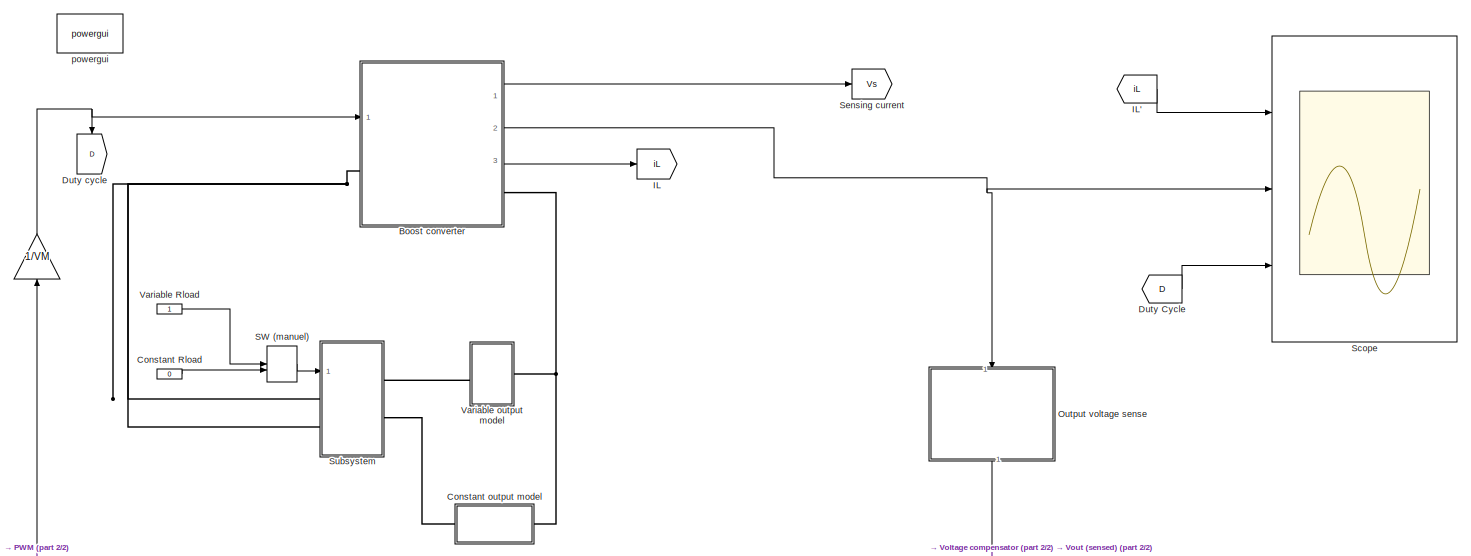
[diagram: root canvas - part 1/2, full width, top band]
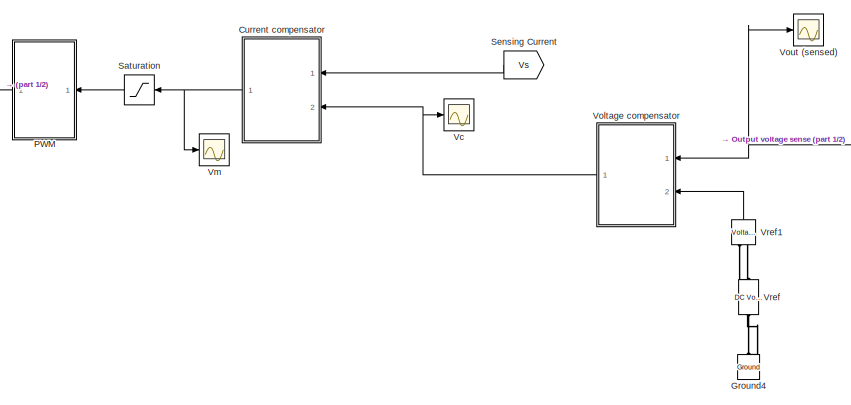
[diagram: root canvas - part 2/2, bottom center region]
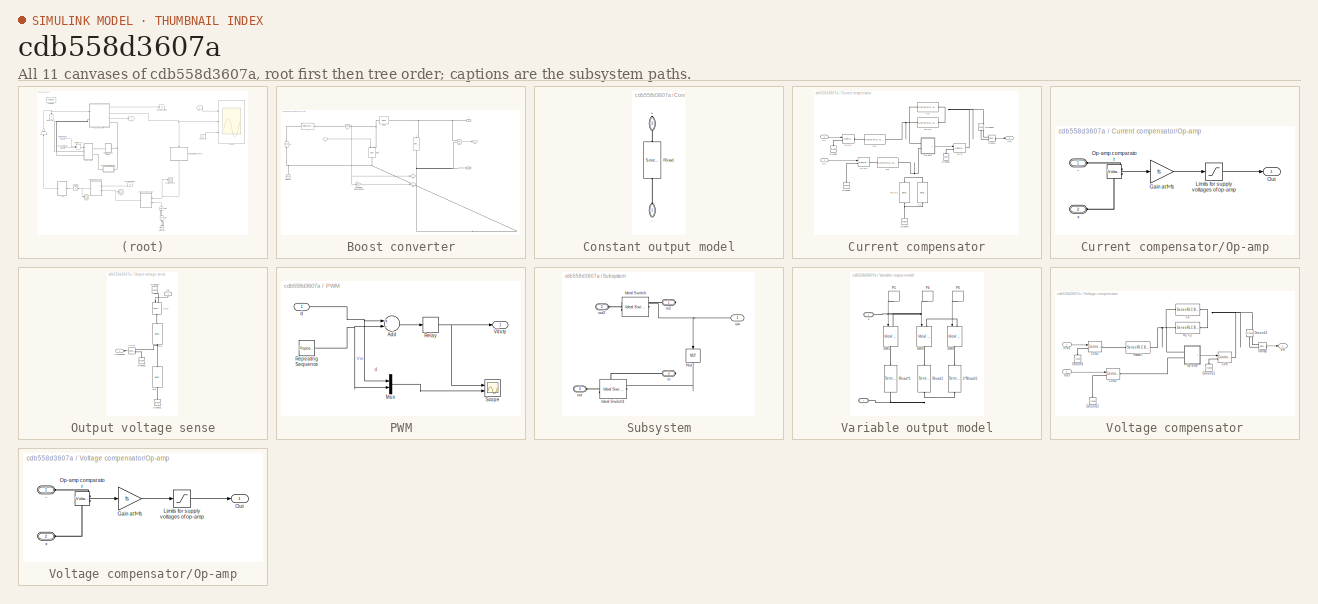
[diagram: thumbnail index - all 11 canvases of the model, root first then tree order]
MODEL slx_cdb558d3607a
KIND model
CONFIG AbsTol = auto
CONFIG FixedStep = auto
CONFIG MaxStep = 0.1e-6
CONFIG MinStep = auto
CONFIG RelTol = 1e-6
CONFIG SampleTimeConstraint = Unconstrained
CONFIG Solver = ode23tb
CONFIG SolverMode = Auto
CONFIG SolverName = ode23tb
CONFIG StartTime = 0.0
CONFIG StopTime = 0.2
BLOCK [Gain]      
  Gain = 1/VM
  OutDataTypeStr = Inherit: Inherit via internal rule
  ParamDataTypeStr = Inherit: Inherit via internal rule
  SaturateOnIntegerOverflow = off
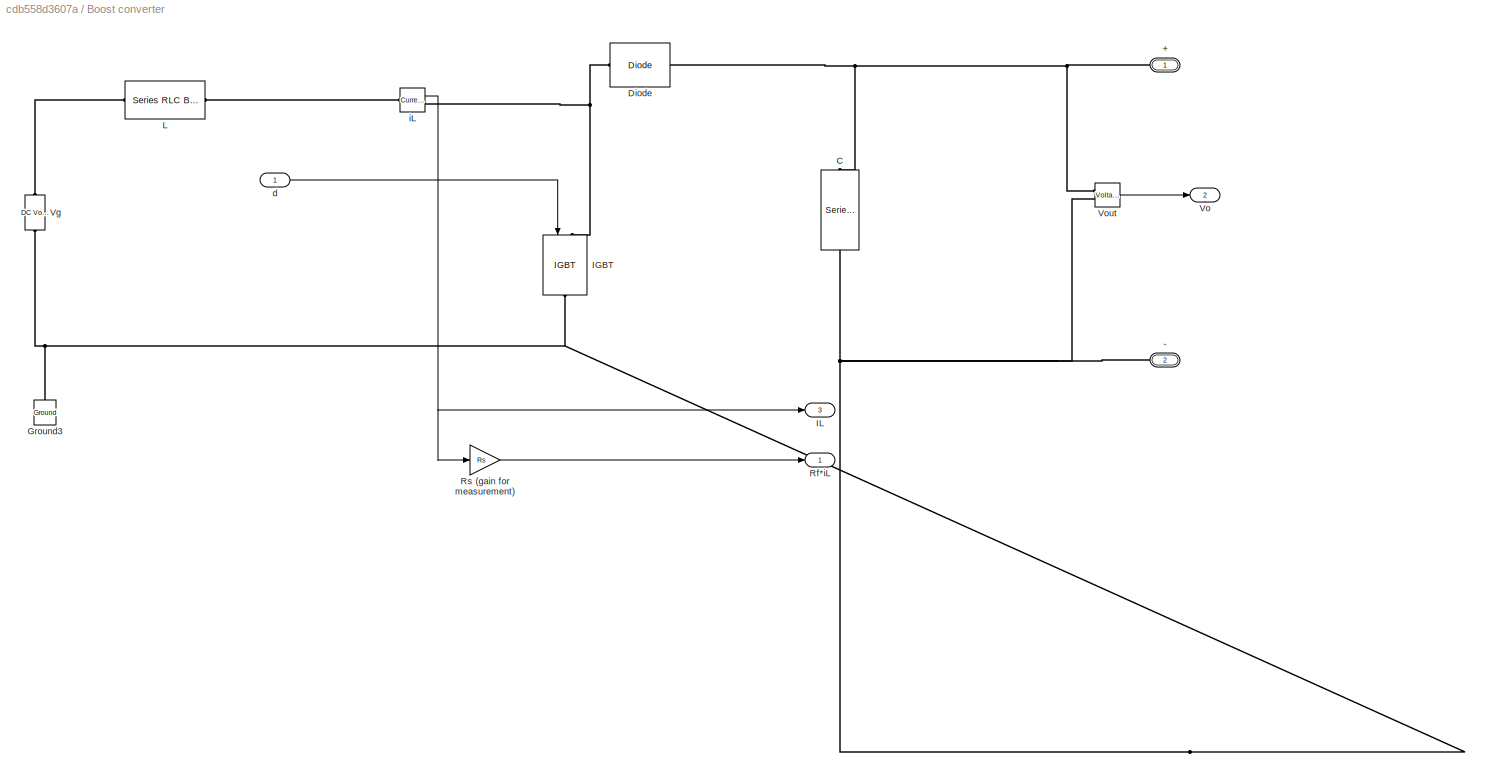
BLOCK [SubSystem] Boost converter
  Ports = [1, 3, 0, 0, 0, 1, 1]
  RequestExecContextInheritance = off
  Variant = off
BLOCK [PMIOPort] Boost converter/+
  Port = 1
  Side = Left
BLOCK [PMIOPort] Boost converter/-
  Port = 2
  Side = Right
BLOCK [Reference] Boost converter/C  REF=powerlib/Elements/Series RLC Branch
  Ports = [0, 0, 0, 0, 0, 1, 1]
  SourceBlock = powerlib/Elements/Series RLC Branch
  SourceType = Series RLC Branch
BLOCK [Reference] Boost converter/Diode  REF=powerlib/Power
Electronics/Diode
  Ports = [0, 0, 0, 0, 0, 1, 1]
  SourceBlock = powerlib/Power\nElectronics/Diode
  SourceType = Diode
BLOCK [Reference] Boost converter/Ground3  REF=powerlib/Elements/Ground
  Ports = [0, 0, 0, 0, 0, 1]
  SourceBlock = powerlib/Elements/Ground
  SourceType = Ground
BLOCK [Reference] Boost converter/IGBT  REF=powerlib/Power
Electronics/IGBT
  Ports = [1, 0, 0, 0, 0, 1, 1]
  SourceBlock = powerlib/Power\nElectronics/IGBT
  SourceType = IGBT
BLOCK [Outport] Boost converter/IL
  IconDisplay = Port number
  Port = 3
BLOCK [Reference] Boost converter/L  REF=powerlib/Elements/Series RLC Branch
  Ports = [0, 0, 0, 0, 0, 1, 1]
  SourceBlock = powerlib/Elements/Series RLC Branch
  SourceType = Series RLC Branch
BLOCK [Outport] Boost converter/Rf*iL
  IconDisplay = Port number
BLOCK [Gain] Boost converter/Rs (gain for measurement)
  Gain = Rs
  OutDataTypeStr = Inherit: Inherit via internal rule
  ParamDataTypeStr = Inherit: Inherit via internal rule
  SaturateOnIntegerOverflow = off
BLOCK [Reference] Boost converter/Vg  REF=powerlib/Electrical
Sources/DC Voltage Source
  Ports = [0, 0, 0, 0, 0, 1, 1]
  SourceBlock = powerlib/Electrical\nSources/DC Voltage Source
  SourceType = DC Voltage Source
BLOCK [Outport] Boost converter/Vo
  IconDisplay = Port number
  Port = 2
BLOCK [Reference] Boost converter/Vout  REF=powerlib/Measurements/Voltage Measurement
  Ports = [0, 1, 0, 0, 0, 2]
  SourceBlock = powerlib/Measurements/Voltage Measurement
  SourceType = Voltage Measurement
  UserDataPersistent = on
BLOCK [Inport] Boost converter/d
  IconDisplay = Port number
BLOCK [Reference] Boost converter/iL  REF=powerlib/Measurements/Current Measurement
  Ports = [0, 1, 0, 0, 0, 1, 1]
  SourceBlock = powerlib/Measurements/Current Measurement
  SourceType = Current Measurement
  UserDataPersistent = on
BLOCK [Constant] Constant Rload
  Value = 0
BLOCK [SubSystem] Constant output model
  Ports = [0, 0, 0, 0, 0, 1, 1]
  RequestExecContextInheritance = off
  ShowPortLabels = FromPortBlockName
  Variant = off
BLOCK [PMIOPort] Constant output model/+
  Port = 2
  Side = Right
BLOCK [PMIOPort] Constant output model/-
  Port = 1
  Side = Left
BLOCK [Reference] Constant output model/Rload  REF=powerlib/Elements/Series RLC Branch
  Ports = [0, 0, 0, 0, 0, 1, 1]
  SourceBlock = powerlib/Elements/Series RLC Branch
  SourceType = Series RLC Branch
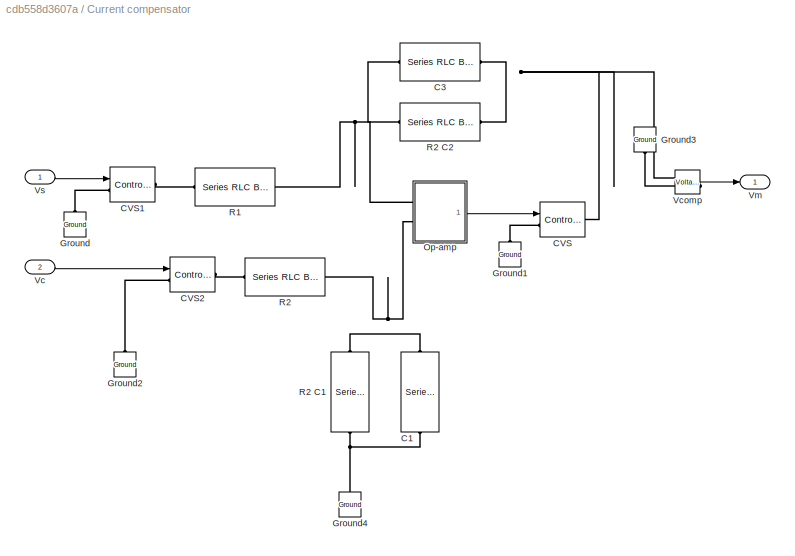
BLOCK [SubSystem] Current compensator
  Ports = [2, 1]
  RequestExecContextInheritance = off
  Variant = off
BLOCK [Reference] Current compensator/C1  REF=powerlib/Elements/Series RLC Branch
  Ports = [0, 0, 0, 0, 0, 1, 1]
  SourceBlock = powerlib/Elements/Series RLC Branch
  SourceType = Series RLC Branch
BLOCK [Reference] Current compensator/C3  REF=powerlib/Elements/Series RLC Branch
  Ports = [0, 0, 0, 0, 0, 1, 1]
  SourceBlock = powerlib/Elements/Series RLC Branch
  SourceType = Series RLC Branch
BLOCK [Reference] Current compensator/CVS  REF=powerlib/Electrical
Sources/Controlled Voltage Source
  Ports = [1, 0, 0, 0, 0, 1, 1]
  SourceBlock = powerlib/Electrical\nSources/Controlled Voltage Source
  SourceType = Controlled Voltage Source
BLOCK [Reference] Current compensator/CVS1  REF=powerlib/Electrical
Sources/Controlled Voltage Source
  Ports = [1, 0, 0, 0, 0, 1, 1]
  SourceBlock = powerlib/Electrical\nSources/Controlled Voltage Source
  SourceType = Controlled Voltage Source
BLOCK [Reference] Current compensator/CVS2  REF=powerlib/Electrical
Sources/Controlled Voltage Source
  Ports = [1, 0, 0, 0, 0, 1, 1]
  SourceBlock = powerlib/Electrical\nSources/Controlled Voltage Source
  SourceType = Controlled Voltage Source
BLOCK [Reference] Current compensator/Ground  REF=powerlib/Elements/Ground
  Ports = [0, 0, 0, 0, 0, 1]
  SourceBlock = powerlib/Elements/Ground
  SourceType = Ground
BLOCK [Reference] Current compensator/Ground1  REF=powerlib/Elements/Ground
  Ports = [0, 0, 0, 0, 0, 1]
  SourceBlock = powerlib/Elements/Ground
  SourceType = Ground
BLOCK [Reference] Current compensator/Ground2  REF=powerlib/Elements/Ground
  Ports = [0, 0, 0, 0, 0, 1]
  SourceBlock = powerlib/Elements/Ground
  SourceType = Ground
BLOCK [Reference] Current compensator/Ground3  REF=powerlib/Elements/Ground
  Ports = [0, 0, 0, 0, 0, 1]
  SourceBlock = powerlib/Elements/Ground
  SourceType = Ground
BLOCK [Reference] Current compensator/Ground4  REF=powerlib/Elements/Ground
  Ports = [0, 0, 0, 0, 0, 1]
  SourceBlock = powerlib/Elements/Ground
  SourceType = Ground
BLOCK [SubSystem] Current compensator/Op-amp
  Ports = [0, 1, 0, 0, 0, 2]
  RequestExecContextInheritance = off
  Variant = off
BLOCK [PMIOPort] Current compensator/Op-amp/+
  Port = 2
  Side = Left
BLOCK [PMIOPort] Current compensator/Op-amp/-
  Port = 1
  Side = Left
BLOCK [Gain] Current compensator/Op-amp/Gain at f=fs
  Gain = fs
  OutDataTypeStr = Inherit: Inherit via internal rule
  ParamDataTypeStr = Inherit: Inherit via internal rule
  SaturateOnIntegerOverflow = off
BLOCK [Saturate] Current compensator/Op-amp/Limits for supply voltages of op-amp
  InputPortMap = u0
  LowerLimit = 0
  Ports = [1, 1]
  UpperLimit = Vcc
BLOCK [Reference] Current compensator/Op-amp/Op-amp comparator   REF=powerlib/Measurements/Voltage Measurement
  Ports = [0, 1, 0, 0, 0, 2]
  SourceBlock = powerlib/Measurements/Voltage Measurement
  SourceType = Voltage Measurement
  UserDataPersistent = on
BLOCK [Outport] Current compensator/Op-amp/Out
  IconDisplay = Port number
BLOCK [Reference] Current compensator/R1  REF=powerlib/Elements/Series RLC Branch
  Ports = [0, 0, 0, 0, 0, 1, 1]
  SourceBlock = powerlib/Elements/Series RLC Branch
  SourceType = Series RLC Branch
BLOCK [Reference] Current compensator/R2  REF=powerlib/Elements/Series RLC Branch
  Ports = [0, 0, 0, 0, 0, 1, 1]
  SourceBlock = powerlib/Elements/Series RLC Branch
  SourceType = Series RLC Branch
BLOCK [Reference] Current compensator/R2          C1  REF=powerlib/Elements/Series RLC Branch
  Ports = [0, 0, 0, 0, 0, 1, 1]
  SourceBlock = powerlib/Elements/Series RLC Branch
  SourceType = Series RLC Branch
BLOCK [Reference] Current compensator/R2          C2  REF=powerlib/Elements/Series RLC Branch
  Ports = [0, 0, 0, 0, 0, 1, 1]
  SourceBlock = powerlib/Elements/Series RLC Branch
  SourceType = Series RLC Branch
BLOCK [Inport] Current compensator/Vc
  IconDisplay = Port number
  Port = 2
BLOCK [Reference] Current compensator/Vcomp  REF=powerlib/Measurements/Voltage Measurement
  Ports = [0, 1, 0, 0, 0, 2]
  SourceBlock = powerlib/Measurements/Voltage Measurement
  SourceType = Voltage Measurement
  UserDataPersistent = on
BLOCK [Outport] Current compensator/Vm
  IconDisplay = Port number
BLOCK [Inport] Current compensator/Vs
  IconDisplay = Port number
BLOCK [From] Duty Cycle
  GotoTag = D
BLOCK [Goto] Duty cycle
  GotoTag = D
BLOCK [Reference] Ground4  REF=powerlib/Elements/Ground
  Ports = [0, 0, 0, 0, 0, 1]
  SourceBlock = powerlib/Elements/Ground
  SourceType = Ground
BLOCK [Goto] IL
  GotoTag = iL
BLOCK [From] IL'
  GotoTag = iL
BLOCK [SubSystem] Output voltage sense
  Ports = [1, 1]
  RequestExecContextInheritance = off
  Variant = off
BLOCK [Reference] Output voltage sense/CVS  REF=powerlib/Electrical
Sources/Controlled Voltage Source
  Ports = [1, 0, 0, 0, 0, 1, 1]
  SourceBlock = powerlib/Electrical\nSources/Controlled Voltage Source
  SourceType = Controlled Voltage Source
BLOCK [Reference] Output voltage sense/Ground1  REF=powerlib/Elements/Ground
  Ports = [0, 0, 0, 0, 0, 1]
  SourceBlock = powerlib/Elements/Ground
  SourceType = Ground
BLOCK [Reference] Output voltage sense/Ground2  REF=powerlib/Elements/Ground
  Ports = [0, 0, 0, 0, 0, 1]
  SourceBlock = powerlib/Elements/Ground
  SourceType = Ground
BLOCK [Reference] Output voltage sense/Ground3  REF=powerlib/Elements/Ground
  Ports = [0, 0, 0, 0, 0, 1]
  SourceBlock = powerlib/Elements/Ground
  SourceType = Ground
BLOCK [Reference] Output voltage sense/H*Vo  REF=powerlib/Measurements/Voltage Measurement
  Ports = [0, 1, 0, 0, 0, 2]
  SourceBlock = powerlib/Measurements/Voltage Measurement
  SourceType = Voltage Measurement
  UserDataPersistent = on
BLOCK [Reference] Output voltage sense/Ra  REF=powerlib/Elements/Series RLC Branch
  Ports = [0, 0, 0, 0, 0, 1, 1]
  SourceBlock = powerlib/Elements/Series RLC Branch
  SourceType = Series RLC Branch
BLOCK [Reference] Output voltage sense/Rb  REF=powerlib/Elements/Series RLC Branch
  Ports = [0, 0, 0, 0, 0, 1, 1]
  SourceBlock = powerlib/Elements/Series RLC Branch
  SourceType = Series RLC Branch
BLOCK [Inport] Output voltage sense/Vo
  IconDisplay = Port number
BLOCK [Outport] Output voltage sense/Vo(sensed)
  IconDisplay = Port number
BLOCK [SubSystem] PWM
  Ports = [1, 1]
  RequestExecContextInheritance = off
  Variant = off
BLOCK [Sum] PWM/Add
  InputSameDT = off
  Inputs = +-
  OutDataTypeStr = Inherit: Inherit via internal rule
  Ports = [2, 1]
  SaturateOnIntegerOverflow = off
BLOCK [Mux] PWM/Mux
  DisplayOption = bar
  Inputs = 2
  Ports = [2, 1]
BLOCK [Relay] PWM/Relay
  InputProcessing = Elements as channels (sample based)
BLOCK [Reference] PWM/Repeating Sequence  REF=simulink/Sources/Repeating
Sequence
  Ports = [0, 1]
  SourceBlock = simulink/Sources/Repeating\nSequence
  SourceType = Repeating table
BLOCK [Scope] PWM/Scope
  NumInputPorts = 2
  Ports = [2]
  ScopeSpecificationString = Simulink.scopes.TimeScopeBlockCfg('CurrentConfiguration', extmgr.ConfigurationSet(extmgr.Configuration('Core','General UI',true),extmgr.Configuration('Core','Source UI',true),extmgr.Configuration('Sources','WiredSimulink',true),extmgr.Configuration('Visuals','Time Domain',true,'SerializedDisplays',{struct('MinYLimReal','-0.125','MaxYLimReal','1.125','YLabelReal','','MinYLimMag','0.00000','MaxYLimM...<+2028ch>
BLOCK [Outport] PWM/Vduty
  IconDisplay = Port number
BLOCK [Inport] PWM/d
  IconDisplay = Port number
BLOCK [ManualSwitch] SW (manuel)
BLOCK [Saturate] Saturation
  InputPortMap = u0
  LowerLimit = 0
  Ports = [1, 1]
  UpperLimit = 1
BLOCK [Scope] Scope
  NumInputPorts = 3
  Ports = [3]
  ScopeSpecificationString = Simulink.scopes.TimeScopeBlockCfg('CurrentConfiguration', extmgr.ConfigurationSet(extmgr.Configuration('Core','General UI',true),extmgr.Configuration('Core','Source UI',true),extmgr.Configuration('Sources','WiredSimulink',true,'DataLoggingVariableName','ScopeData1'),extmgr.Configuration('Visuals','Time Domain',true,'SerializedDisplays',{struct('MinYLimReal','-2.90487','MaxYLimReal','60.33795','YLa...<+2676ch>
BLOCK [From] Sensing Current 
  GotoTag = Vs
BLOCK [Goto] Sensing current
  GotoTag = Vs
BLOCK [SubSystem] Subsystem
  Ports = [1, 0, 0, 0, 0, 2, 2]
  RequestExecContextInheritance = off
  Variant = off
BLOCK [Reference] Subsystem/Ideal Switch  REF=powerlib/Power
Electronics/Ideal Switch
  Ports = [1, 0, 0, 0, 0, 1, 1]
  SourceBlock = powerlib/Power\nElectronics/Ideal Switch
  SourceType = Ideal Switch
BLOCK [Reference] Subsystem/Ideal Switch1  REF=powerlib/Power
Electronics/Ideal Switch
  Ports = [1, 0, 0, 0, 0, 1, 1]
  SourceBlock = powerlib/Power\nElectronics/Ideal Switch
  SourceType = Ideal Switch
BLOCK [Logic] Subsystem/Not
  AllPortsSameDT = off
  Operator = NOT
  OutDataTypeStr = boolean
  Ports = [1, 1]
BLOCK [PMIOPort] Subsystem/in
  Port = 3
  Side = Right
BLOCK [PMIOPort] Subsystem/in2
  Port = 1
  Side = Right
BLOCK [PMIOPort] Subsystem/out
  Port = 4
  Side = Left
BLOCK [PMIOPort] Subsystem/out2
  Port = 2
  Side = Left
BLOCK [Inport] Subsystem/sw
  IconDisplay = Port number
BLOCK [Constant] Variable Rload
BLOCK [SubSystem] Variable output model
  Ports = [0, 0, 0, 0, 0, 1, 1]
  RequestExecContextInheritance = off
  Variant = off
BLOCK [PMIOPort] Variable output model/+
  Port = 2
  Side = Left
BLOCK [PMIOPort] Variable output model/-
  Port = 1
  Side = Right
BLOCK [Reference] Variable output model/2*Rload//1  REF=powerlib/Elements/Series RLC Branch
  Ports = [0, 0, 0, 0, 0, 1, 1]
  SourceBlock = powerlib/Elements/Series RLC Branch
  SourceType = Series RLC Branch
BLOCK [DiscretePulseGenerator] Variable output model/P4
  Period = 0.2
  Ports = [0, 1]
  PulseType = Time based
  PulseWidth = 60
BLOCK [DiscretePulseGenerator] Variable output model/P5
  Period = 0.12
  PhaseDelay = 0.04
  Ports = [0, 1]
  PulseType = Time based
  PulseWidth = 33
BLOCK [DiscretePulseGenerator] Variable output model/P6
  Period = 0.2
  PhaseDelay = 0.12
  Ports = [0, 1]
  PulseType = Time based
  PulseWidth = 20
BLOCK [Reference] Variable output model/Rload*1  REF=powerlib/Elements/Series RLC Branch
  Ports = [0, 0, 0, 0, 0, 1, 1]
  SourceBlock = powerlib/Elements/Series RLC Branch
  SourceType = Series RLC Branch
BLOCK [Reference] Variable output model/Rload1  REF=powerlib/Elements/Series RLC Branch
  Ports = [0, 0, 0, 0, 0, 1, 1]
  SourceBlock = powerlib/Elements/Series RLC Branch
  SourceType = Series RLC Branch
BLOCK [Reference] Variable output model/SW4  REF=powerlib/Power
Electronics/Ideal Switch
  Ports = [1, 0, 0, 0, 0, 1, 1]
  SourceBlock = powerlib/Power\nElectronics/Ideal Switch
  SourceType = Ideal Switch
BLOCK [Reference] Variable output model/SW5  REF=powerlib/Power
Electronics/Ideal Switch
  Ports = [1, 0, 0, 0, 0, 1, 1]
  SourceBlock = powerlib/Power\nElectronics/Ideal Switch
  SourceType = Ideal Switch
BLOCK [Reference] Variable output model/SW6  REF=powerlib/Power
Electronics/Ideal Switch
  Ports = [1, 0, 0, 0, 0, 1, 1]
  SourceBlock = powerlib/Power\nElectronics/Ideal Switch
  SourceType = Ideal Switch
BLOCK [Scope] Vc
  Ports = [1]
  ScopeSpecificationString = Simulink.scopes.TimeScopeBlockCfg('CurrentConfiguration', extmgr.ConfigurationSet(extmgr.Configuration('Core','General UI',true),extmgr.Configuration('Core','Source UI',true),extmgr.Configuration('Sources','WiredSimulink',true,'DataLoggingVariableName','ScopeData3'),extmgr.Configuration('Visuals','Time Domain',true,'SerializedDisplays',{struct('MinYLimReal','-0.84477','MaxYLimReal','13.4272','YLab...<+1424ch>
BLOCK [Scope] Vm
  Ports = [1]
  ScopeSpecificationString = Simulink.scopes.TimeScopeBlockCfg('CurrentConfiguration', extmgr.ConfigurationSet(extmgr.Configuration('Core','General UI',true),extmgr.Configuration('Core','Source UI',true),extmgr.Configuration('Sources','WiredSimulink',true,'DataLoggingVariableName','ScopeData1'),extmgr.Configuration('Visuals','Time Domain',true,'SerializedDisplays',{struct('MinYLimReal','-0.07961','MaxYLimReal','0.71648','YLab...<+1424ch>
BLOCK [SubSystem] Voltage compensator
  Ports = [2, 1]
  RequestExecContextInheritance = off
  Variant = off
BLOCK [Reference] Voltage compensator/C3  REF=powerlib/Elements/Series RLC Branch
  Ports = [0, 0, 0, 0, 0, 1, 1]
  SourceBlock = powerlib/Elements/Series RLC Branch
  SourceType = Series RLC Branch
BLOCK [Reference] Voltage compensator/CVS  REF=powerlib/Electrical
Sources/Controlled Voltage Source
  Ports = [1, 0, 0, 0, 0, 1, 1]
  SourceBlock = powerlib/Electrical\nSources/Controlled Voltage Source
  SourceType = Controlled Voltage Source
BLOCK [Reference] Voltage compensator/CVS1  REF=powerlib/Electrical
Sources/Controlled Voltage Source
  Ports = [1, 0, 0, 0, 0, 1, 1]
  SourceBlock = powerlib/Electrical\nSources/Controlled Voltage Source
  SourceType = Controlled Voltage Source
BLOCK [Reference] Voltage compensator/CVS2  REF=powerlib/Electrical
Sources/Controlled Voltage Source
  Ports = [1, 0, 0, 0, 0, 1, 1]
  SourceBlock = powerlib/Electrical\nSources/Controlled Voltage Source
  SourceType = Controlled Voltage Source
BLOCK [Reference] Voltage compensator/Ground  REF=powerlib/Elements/Ground
  Ports = [0, 0, 0, 0, 0, 1]
  SourceBlock = powerlib/Elements/Ground
  SourceType = Ground
BLOCK [Reference] Voltage compensator/Ground1  REF=powerlib/Elements/Ground
  Ports = [0, 0, 0, 0, 0, 1]
  SourceBlock = powerlib/Elements/Ground
  SourceType = Ground
BLOCK [Reference] Voltage compensator/Ground2  REF=powerlib/Elements/Ground
  Ports = [0, 0, 0, 0, 0, 1]
  SourceBlock = powerlib/Elements/Ground
  SourceType = Ground
BLOCK [Reference] Voltage compensator/Ground3  REF=powerlib/Elements/Ground
  Ports = [0, 0, 0, 0, 0, 1]
  SourceBlock = powerlib/Elements/Ground
  SourceType = Ground
BLOCK [Inport] Voltage compensator/H*Vo
  IconDisplay = Port number
BLOCK [SubSystem] Voltage compensator/Op-amp
  Ports = [0, 1, 0, 0, 0, 2]
  RequestExecContextInheritance = off
  Variant = off
BLOCK [PMIOPort] Voltage compensator/Op-amp/+
  Port = 2
  Side = Left
BLOCK [PMIOPort] Voltage compensator/Op-amp/-
  Port = 1
  Side = Left
BLOCK [Gain] Voltage compensator/Op-amp/Gain at f=fs
  Gain = fs
  OutDataTypeStr = Inherit: Inherit via internal rule
  ParamDataTypeStr = Inherit: Inherit via internal rule
  SaturateOnIntegerOverflow = off
BLOCK [Saturate] Voltage compensator/Op-amp/Limits for supply voltages of op-amp
  InputPortMap = u0
  LowerLimit = 0
  Ports = [1, 1]
  UpperLimit = Vcc
BLOCK [Reference] Voltage compensator/Op-amp/Op-amp comparator   REF=powerlib/Measurements/Voltage Measurement
  Ports = [0, 1, 0, 0, 0, 2]
  SourceBlock = powerlib/Measurements/Voltage Measurement
  SourceType = Voltage Measurement
  UserDataPersistent = on
BLOCK [Outport] Voltage compensator/Op-amp/Out
  IconDisplay = Port number
BLOCK [Reference] Voltage compensator/R2          C2  REF=powerlib/Elements/Series RLC Branch
  Ports = [0, 0, 0, 0, 0, 1, 1]
  SourceBlock = powerlib/Elements/Series RLC Branch
  SourceType = Series RLC Branch
BLOCK [Reference] Voltage compensator/Rsmall   REF=powerlib/Elements/Series RLC Branch
  Ports = [0, 0, 0, 0, 0, 1, 1]
  SourceBlock = powerlib/Elements/Series RLC Branch
  SourceType = Series RLC Branch
BLOCK [Reference] Voltage compensator/Vcomp  REF=powerlib/Measurements/Voltage Measurement
  Ports = [0, 1, 0, 0, 0, 2]
  SourceBlock = powerlib/Measurements/Voltage Measurement
  SourceType = Voltage Measurement
  UserDataPersistent = on
BLOCK [Outport] Voltage compensator/Vm
  IconDisplay = Port number
BLOCK [Inport] Voltage compensator/Vref
  IconDisplay = Port number
  Port = 2
BLOCK [Scope] Vout (sensed)
  Ports = [1]
  ScopeSpecificationString = Simulink.scopes.TimeScopeBlockCfg('CurrentConfiguration', extmgr.ConfigurationSet(extmgr.Configuration('Core','General UI',true),extmgr.Configuration('Core','Source UI',true),extmgr.Configuration('Sources','WiredSimulink',true,'DataLoggingVariableName','ScopeData2'),extmgr.Configuration('Visuals','Time Domain',true,'SerializedDisplays',{struct('MinYLimReal','-56.5557','MaxYLimReal','558.95138','YL...<+1433ch>
BLOCK [Reference] Vref  REF=powerlib/Electrical
Sources/DC Voltage Source
  Ports = [0, 0, 0, 0, 0, 1, 1]
  SourceBlock = powerlib/Electrical\nSources/DC Voltage Source
  SourceType = DC Voltage Source
BLOCK [Reference] Vref1  REF=powerlib/Measurements/Voltage Measurement
  Ports = [0, 1, 0, 0, 0, 2]
  SourceBlock = powerlib/Measurements/Voltage Measurement
  SourceType = Voltage Measurement
  UserDataPersistent = on
BLOCK [Reference] powergui  REF=powerlib/powergui
  Ports = []
  Priority = 1
  SourceBlock = powerlib/powergui
  SourceType = PSB option menu block
  UserDataPersistent = on
ANNOTATION PWM: d
NET      :1 -> Boost converter:1, Duty cycle:1
LINE Boost converter/Rs (gain for measurement):1 -> Boost converter/Rf*iL:1
LINE Boost converter/Vout:1 -> Boost converter/Vo:1
LINE Boost converter/d:1 -> Boost converter/IGBT:1
NET Boost converter/iL:1 -> Boost converter/IL:1, Boost converter/Rs (gain for measurement):1
LINE Boost converter:1 -> Sensing current:1
NET Boost converter:2 -> Output voltage sense:1, Scope:2
LINE Boost converter:3 -> IL:1
LINE Constant Rload:1 -> SW (manuel):2
LINE Current compensator/Op-amp/Gain at f=fs:1 -> Current compensator/Op-amp/Limits for supply voltages of op-amp:1
LINE Current compensator/Op-amp/Limits for supply voltages of op-amp:1 -> Current compensator/Op-amp/Out:1
LINE Current compensator/Op-amp/Op-amp comparator :1 -> Current compensator/Op-amp/Gain at f=fs:1
LINE Current compensator/Op-amp:1 -> Current compensator/CVS:1
LINE Current compensator/Vc:1 -> Current compensator/CVS2:1
LINE Current compensator/Vcomp:1 -> Current compensator/Vm:1
LINE Current compensator/Vs:1 -> Current compensator/CVS1:1
NET Current compensator:1 -> Saturation:1, Vm:1
LINE Duty Cycle:1 -> Scope:3
LINE IL':1 -> Scope:1
LINE Output voltage sense/H*Vo:1 -> Output voltage sense/Vo(sensed):1
LINE Output voltage sense/Vo:1 -> Output voltage sense/CVS:1
NET Output voltage sense:1 -> Voltage compensator:1, Vout (sensed):1
LINE PWM/Add:1 -> PWM/Relay:1
LINE PWM/Mux:1 -> PWM/Scope:2
NET PWM/Relay:1 -> PWM/Scope:1, PWM/Vduty:1
NET PWM/Repeating Sequence:1 -> PWM/Add:2, PWM/Mux:2
NET PWM/d:1 -> PWM/Add:1, PWM/Mux:1
LINE PWM:1 ->      :1
LINE SW (manuel):1 -> Subsystem:1
LINE Saturation:1 -> PWM:1
LINE Sensing Current :1 -> Current compensator:1
LINE Subsystem/Not:1 -> Subsystem/Ideal Switch1:1
NET Subsystem/sw:1 -> Subsystem/Ideal Switch:1, Subsystem/Not:1
LINE Variable Rload:1 -> SW (manuel):1
LINE Variable output model/P4:1 -> Variable output model/SW4:1
LINE Variable output model/P5:1 -> Variable output model/SW5:1
LINE Variable output model/P6:1 -> Variable output model/SW6:1
LINE Voltage compensator/H*Vo:1 -> Voltage compensator/CVS1:1
LINE Voltage compensator/Op-amp/Gain at f=fs:1 -> Voltage compensator/Op-amp/Limits for supply voltages of op-amp:1
LINE Voltage compensator/Op-amp/Limits for supply voltages of op-amp:1 -> Voltage compensator/Op-amp/Out:1
LINE Voltage compensator/Op-amp/Op-amp comparator :1 -> Voltage compensator/Op-amp/Gain at f=fs:1
LINE Voltage compensator/Op-amp:1 -> Voltage compensator/CVS:1
LINE Voltage compensator/Vcomp:1 -> Voltage compensator/Vm:1
LINE Voltage compensator/Vref:1 -> Voltage compensator/CVS2:1
NET Voltage compensator:1 -> Current compensator:2, Vc:1
LINE Vref1:1 -> Voltage compensator:2
PNET net1: Boost converter/+:RConn1 -- Boost converter/C:LConn1 -- Boost converter/Diode:RConn1 -- Boost converter/Vout:LConn1
PNET net2: Boost converter/-:RConn1 -- Boost converter/C:RConn1 -- Boost converter/Ground3:LConn1 -- Boost converter/IGBT:RConn1 -- Boost converter/Vg:LConn1 -- Boost converter/Vout:LConn2
PNET net3: Boost converter/Diode:LConn1 -- Boost converter/IGBT:LConn1 -- Boost converter/iL:RConn1
PLINE Boost converter/L:LConn1 -- Boost converter/Vg:RConn1
PLINE Boost converter/L:RConn1 -- Boost converter/iL:LConn1
PNET net4: Boost converter:LConn1 -- Subsystem:LConn1 -- Subsystem:LConn2
PNET net5: Boost converter:RConn1 -- Constant output model:LConn1 -- Variable output model:RConn1
PLINE Constant output model/+:RConn1 -- Constant output model/Rload:LConn1
PLINE Constant output model/-:RConn1 -- Constant output model/Rload:RConn1
PLINE Constant output model:RConn1 -- Subsystem:RConn2
PNET net6: Current compensator/C1:LConn1 -- Current compensator/Op-amp:LConn2 -- Current compensator/R2          C1:LConn1 -- Current compensator/R2:RConn1
PNET net7: Current compensator/C1:RConn1 -- Current compensator/Ground4:LConn1 -- Current compensator/R2          C1:RConn1
PNET net8: Current compensator/C3:LConn1 -- Current compensator/Op-amp:LConn1 -- Current compensator/R1:RConn1 -- Current compensator/R2          C2:LConn1
PNET net9: Current compensator/C3:RConn1 -- Current compensator/CVS:RConn1 -- Current compensator/R2          C2:RConn1 -- Current compensator/Vcomp:LConn1
PLINE Current compensator/CVS1:LConn1 -- Current compensator/Ground:LConn1
PLINE Current compensator/CVS1:RConn1 -- Current compensator/R1:LConn1
PLINE Current compensator/CVS2:LConn1 -- Current compensator/Ground2:LConn1
PLINE Current compensator/CVS2:RConn1 -- Current compensator/R2:LConn1
PLINE Current compensator/CVS:LConn1 -- Current compensator/Ground1:LConn1
PLINE Current compensator/Ground3:LConn1 -- Current compensator/Vcomp:LConn2
PLINE Current compensator/Op-amp/+:RConn1 -- Current compensator/Op-amp/Op-amp comparator :LConn1
PLINE Current compensator/Op-amp/-:RConn1 -- Current compensator/Op-amp/Op-amp comparator :LConn2
PNET net10: Ground4:LConn1 -- Vref1:LConn2 -- Vref:LConn1
PLINE Output voltage sense/CVS:LConn1 -- Output voltage sense/Ground2:LConn1
PLINE Output voltage sense/CVS:RConn1 -- Output voltage sense/Ra:LConn1
PLINE Output voltage sense/Ground1:LConn1 -- Output voltage sense/Rb:RConn1
PLINE Output voltage sense/Ground3:LConn1 -- Output voltage sense/H*Vo:LConn2
PNET net11: Output voltage sense/H*Vo:LConn1 -- Output voltage sense/Ra:RConn1 -- Output voltage sense/Rb:LConn1
PLINE Subsystem/Ideal Switch1:LConn1 -- Subsystem/in:RConn1
PLINE Subsystem/Ideal Switch1:RConn1 -- Subsystem/out:RConn1
PLINE Subsystem/Ideal Switch:LConn1 -- Subsystem/in2:RConn1
PLINE Subsystem/Ideal Switch:RConn1 -- Subsystem/out2:RConn1
PLINE Subsystem:RConn1 -- Variable output model:LConn1
PNET net12: Variable output model/+:RConn1 -- Variable output model/SW4:LConn1 -- Variable output model/SW5:LConn1 -- Variable output model/SW6:LConn1
PNET net13: Variable output model/-:RConn1 -- Variable output model/2*Rload//1:RConn1 -- Variable output model/Rload*1:RConn1 -- Variable output model/Rload1:RConn1
PLINE Variable output model/2*Rload//1:LConn1 -- Variable output model/SW6:RConn1
PLINE Variable output model/Rload*1:LConn1 -- Variable output model/SW5:RConn1
PLINE Variable output model/Rload1:LConn1 -- Variable output model/SW4:RConn1
PNET net14: Voltage compensator/C3:LConn1 -- Voltage compensator/Op-amp:LConn1 -- Voltage compensator/R2          C2:LConn1 -- Voltage compensator/Rsmall :RConn1
PNET net15: Voltage compensator/C3:RConn1 -- Voltage compensator/CVS:RConn1 -- Voltage compensator/R2          C2:RConn1 -- Voltage compensator/Vcomp:LConn1
PLINE Voltage compensator/CVS1:LConn1 -- Voltage compensator/Ground:LConn1
PLINE Voltage compensator/CVS1:RConn1 -- Voltage compensator/Rsmall :LConn1
PLINE Voltage compensator/CVS2:LConn1 -- Voltage compensator/Ground2:LConn1
PLINE Voltage compensator/CVS2:RConn1 -- Voltage compensator/Op-amp:LConn2
PLINE Voltage compensator/CVS:LConn1 -- Voltage compensator/Ground1:LConn1
PLINE Voltage compensator/Ground3:LConn1 -- Voltage compensator/Vcomp:LConn2
PLINE Voltage compensator/Op-amp/+:RConn1 -- Voltage compensator/Op-amp/Op-amp comparator :LConn1
PLINE Voltage compensator/Op-amp/-:RConn1 -- Voltage compensator/Op-amp/Op-amp comparator :LConn2
PLINE Vref1:LConn1 -- Vref:RConn1
note: NET lines group one-source signal fan-out (src -> all destinations, sorted); 1:1 wires keep LINE; PNET lines group multi-terminal physical nets as a canonical sorted terminal list (undirected conserving connections); 2-terminal nets keep the pairwise PLINE form
